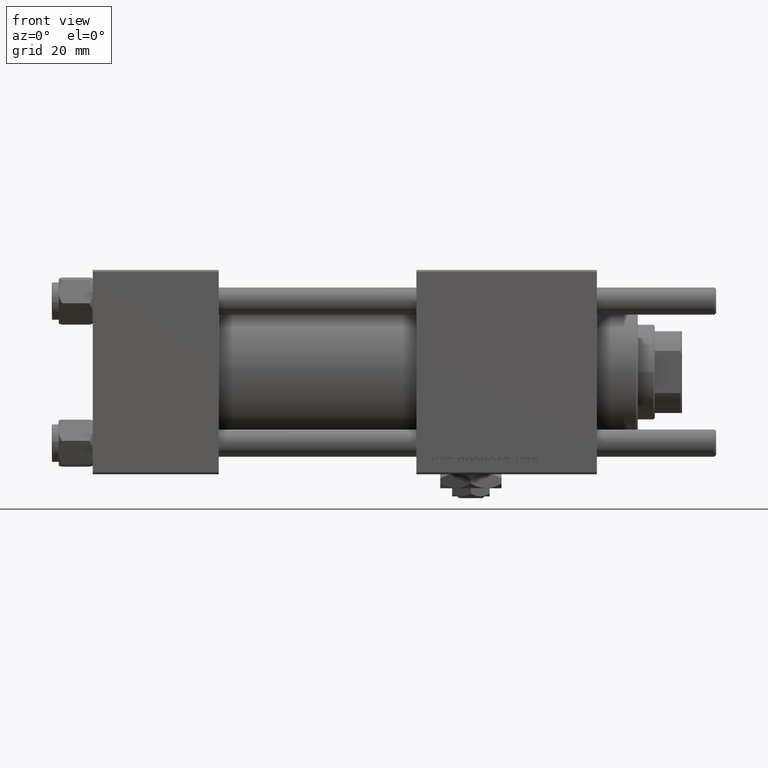
[diagram: clean part render]
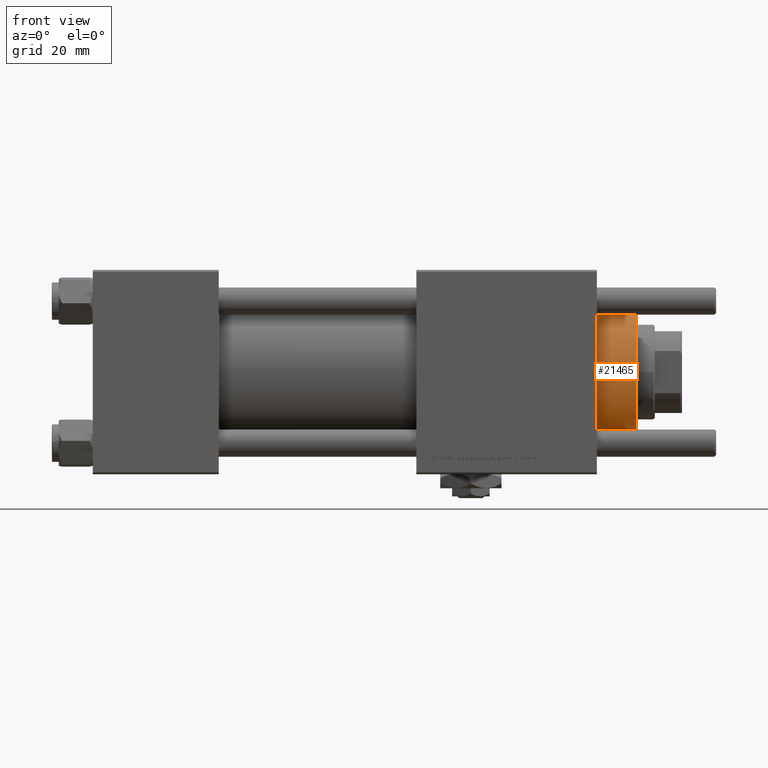
[diagram: same view with one face highlighted and labeled with its STEP entity id]
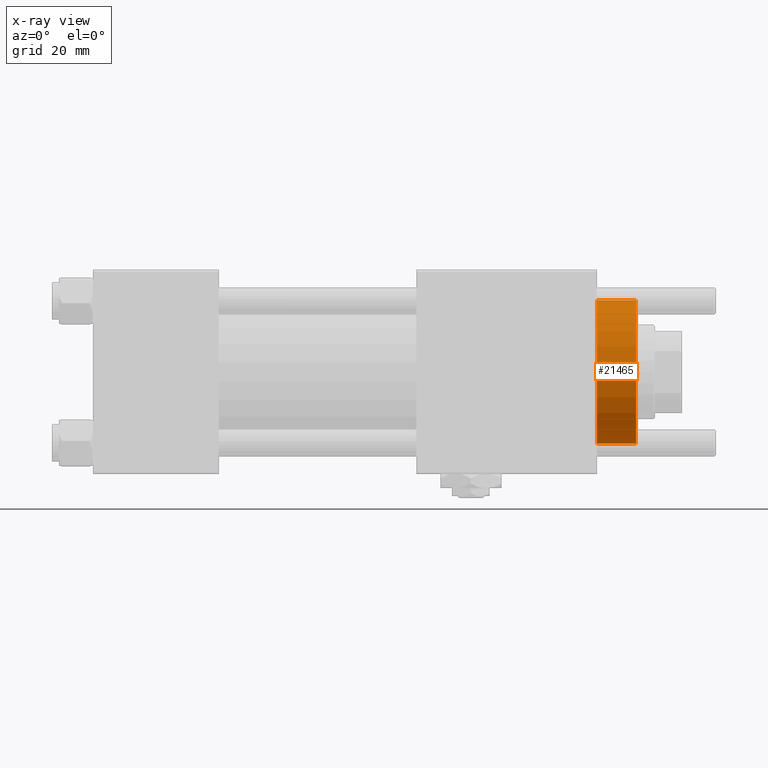
[diagram: x-ray of the same camera — body ghosted, the highlighted face saturated]
A machine part, front view. The second image highlights one B-rep face of the part: STEP entity #21465.
The next image is the same camera in x-ray: the body ghosted, the highlighted face saturated — about 1% of this face is hidden behind the body in this view.
In plain terms, the highlighted cylindrical surface (partial cylindrical patch) has radius 21 mm, axis along (-1, -0, 0).
Its self-contained STEP definition (entity closure, byte-faithful):
#6496 = DIRECTION ( 'NONE',  ( -1.000000000000000000, 0.000000000000000000, 0.000000000000000000 ) ) ;
#9126 = CARTESIAN_POINT ( 'NONE',  ( 21.00000000000000000, 2.571758278209441661E-15, 28.69999999999999929 ) ) ;
#10141 = DIRECTION ( 'NONE',  ( 1.000000000000000000, 0.000000000000000000, 0.000000000000000000 ) ) ;
#11112 = VECTOR ( 'NONE', #29385, 1000.000000000000000 ) ;
#12763 = EDGE_CURVE ( 'NONE', #31181, #56269, #16492, .T. ) ;
#15016 = DIRECTION ( 'NONE',  ( 0.000000000000000000, 0.000000000000000000, 1.000000000000000000 ) ) ;
#15310 = DIRECTION ( 'NONE',  ( 1.000000000000000000, 0.000000000000000000, 0.000000000000000000 ) ) ;
#16474 = LINE ( 'NONE', #39265, #50812 ) ;
#16492 = CIRCLE ( 'NONE', #49597, 21.00000000000000000 ) ;
#18046 = ORIENTED_EDGE ( 'NONE', *, *, #12763, .T. ) ;
#18355 = ORIENTED_EDGE ( 'NONE', *, *, #19763, .T. ) ;
#19599 = LINE ( 'NONE', #55712, #11112 ) ;
#19763 = EDGE_CURVE ( 'NONE', #33117, #31181, #16474, .T. ) ;
#20704 = CARTESIAN_POINT ( 'NONE',  ( 0.000000000000000000, 0.000000000000000000, 40.70000000000000284 ) ) ;
#20846 = EDGE_CURVE ( 'NONE', #21313, #33117, #35688, .T. ) ;
#21310 = EDGE_CURVE ( 'NONE', #21313, #56269, #19599, .T. ) ;
#21313 = VERTEX_POINT ( 'NONE', #52160 ) ;
#21465 = ADVANCED_FACE ( 'NONE', ( #24575 ), #42343, .T. ) ;
#24192 = CARTESIAN_POINT ( 'NONE',  ( 0.000000000000000000, 0.000000000000000000, 28.69999999999999929 ) ) ;
#24575 = FACE_OUTER_BOUND ( 'NONE', #50158, .T. ) ;
#24868 = DIRECTION ( 'NONE',  ( -0.000000000000000000, -0.000000000000000000, -1.000000000000000000 ) ) ;
#28472 = ORIENTED_EDGE ( 'NONE', *, *, #21310, .F. ) ;
#28518 = CARTESIAN_POINT ( 'NONE',  ( 0.000000000000000000, 0.000000000000000000, 40.19999999999998863 ) ) ;
#29385 = DIRECTION ( 'NONE',  ( -0.000000000000000000, -0.000000000000000000, -1.000000000000000000 ) ) ;
#31181 = VERTEX_POINT ( 'NONE', #38168 ) ;
#33117 = VERTEX_POINT ( 'NONE', #35841 ) ;
#35688 = CIRCLE ( 'NONE', #39442, 21.00000000000000000 ) ;
#35841 = CARTESIAN_POINT ( 'NONE',  ( -21.00000000000000000, 0.000000000000000000, 40.19999999999998863 ) ) ;
#38168 = CARTESIAN_POINT ( 'NONE',  ( -21.00000000000000000, 0.000000000000000000, 28.69999999999999929 ) ) ;
#39265 = CARTESIAN_POINT ( 'NONE',  ( -21.00000000000000000, 0.000000000000000000, 40.70000000000000284 ) ) ;
#39442 = AXIS2_PLACEMENT_3D ( 'NONE', #28518, #41834, #10141 ) ;
#41834 = DIRECTION ( 'NONE',  ( 0.000000000000000000, 0.000000000000000000, -1.000000000000000000 ) ) ;
#42090 = ORIENTED_EDGE ( 'NONE', *, *, #20846, .T. ) ;
#42343 = CYLINDRICAL_SURFACE ( 'NONE', #44220, 21.00000000000000000 ) ;
#44220 = AXIS2_PLACEMENT_3D ( 'NONE', #20704, #24868, #6496 ) ;
#49597 = AXIS2_PLACEMENT_3D ( 'NONE', #24192, #15016, #15310 ) ;
#50158 = EDGE_LOOP ( 'NONE', ( #28472, #42090, #18355, #18046 ) ) ;
#50812 = VECTOR ( 'NONE', #57300, 1000.000000000000000 ) ;
#52160 = CARTESIAN_POINT ( 'NONE',  ( 21.00000000000000000, 2.571758278209441661E-15, 40.19999999999998863 ) ) ;
#55712 = CARTESIAN_POINT ( 'NONE',  ( 21.00000000000000000, 2.571758278209441661E-15, 40.70000000000000284 ) ) ;
#56269 = VERTEX_POINT ( 'NONE', #9126 ) ;
#57300 = DIRECTION ( 'NONE',  ( -0.000000000000000000, -0.000000000000000000, -1.000000000000000000 ) ) ;